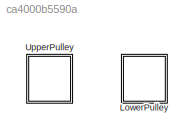
MODEL slx_ca4000b5590a
KIND library
CONFIG AbsTol = auto
CONFIG EnableMultiTasking = off
CONFIG FixedStep = auto
CONFIG MaxStep = auto
CONFIG MinStep = auto
CONFIG RelTol = 1e-3
CONFIG SampleTimeConstraint = Unconstrained
CONFIG Solver = VariableStepAuto
CONFIG SolverName = VariableStepAuto
CONFIG StartTime = 0.0
CONFIG StopTime = 10.0
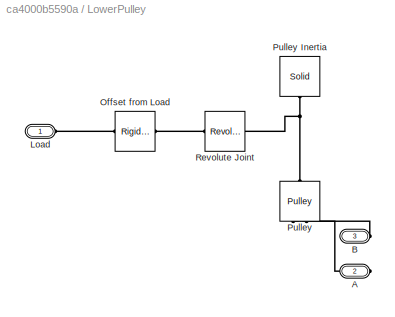
BLOCK [SubSystem] LowerPulley
  Ports = [0, 0, 0, 0, 0, 1, 2]
  RequestExecContextInheritance = off
BLOCK [PMIOPort] LowerPulley/A
  Port = 2
  Side = Right
BLOCK [PMIOPort] LowerPulley/B
  Port = 3
  Side = Right
BLOCK [PMIOPort] LowerPulley/Load
  Side = Left
BLOCK [Reference] LowerPulley/Offset from Load  REF=sm_lib/Frames and
Transforms/Rigid
Transform
  Ports = [0, 0, 0, 0, 0, 1, 1]
  SourceBlock = sm_lib/Frames and\nTransforms/Rigid\nTransform
  SourceProductBaseCode = MS
  SourceProductName = Simscape Multibody
  SourceType = Rigid\nTransform
BLOCK [Reference] LowerPulley/Pulley  REF=sm_lib/Belts and Cables/Pulley
  Ports = [0, 0, 0, 0, 0, 1, 2]
  SourceBlock = sm_lib/Belts and Cables/Pulley
  SourceProductBaseCode = MS
  SourceProductName = Simscape Multibody
  SourceType = Pulley
BLOCK [Reference] LowerPulley/Pulley Inertia  REF=sm_lib/Body Elements/Solid
  Ports = [0, 0, 0, 0, 0, 1]
  SourceBlock = sm_lib/Body Elements/Solid
  SourceProductBaseCode = MS
  SourceProductName = Simscape Multibody
  SourceType = Solid
BLOCK [Reference] LowerPulley/Revolute Joint  REF=sm_lib/Joints/Revolute Joint
  Ports = [0, 0, 0, 0, 0, 1, 1]
  SourceBlock = sm_lib/Joints/Revolute Joint
  SourceProductBaseCode = MS
  SourceProductName = Simscape Multibody
  SourceType = Revolute Joint
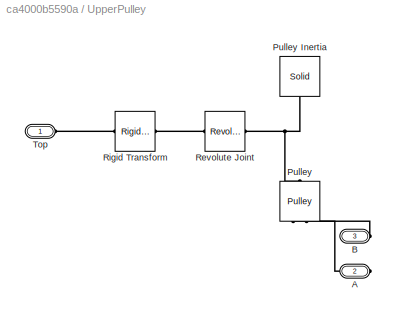
BLOCK [SubSystem] UpperPulley
  Ports = [0, 0, 0, 0, 0, 1, 2]
  RequestExecContextInheritance = off
BLOCK [PMIOPort] UpperPulley/A
  Port = 2
  Side = Right
BLOCK [PMIOPort] UpperPulley/B
  Port = 3
  Side = Right
BLOCK [Reference] UpperPulley/Pulley  REF=sm_lib/Belts and Cables/Pulley
  Ports = [0, 0, 0, 0, 0, 1, 2]
  SourceBlock = sm_lib/Belts and Cables/Pulley
  SourceProductBaseCode = MS
  SourceProductName = Simscape Multibody
  SourceType = Pulley
BLOCK [Reference] UpperPulley/Pulley Inertia  REF=sm_lib/Body Elements/Solid
  Ports = [0, 0, 0, 0, 0, 1]
  SourceBlock = sm_lib/Body Elements/Solid
  SourceProductBaseCode = MS
  SourceProductName = Simscape Multibody
  SourceType = Solid
BLOCK [Reference] UpperPulley/Revolute Joint  REF=sm_lib/Joints/Revolute Joint
  Ports = [0, 0, 0, 0, 0, 1, 1]
  SourceBlock = sm_lib/Joints/Revolute Joint
  SourceProductBaseCode = MS
  SourceProductName = Simscape Multibody
  SourceType = Revolute Joint
BLOCK [Reference] UpperPulley/Rigid Transform  REF=sm_lib/Frames and
Transforms/Rigid
Transform
  Ports = [0, 0, 0, 0, 0, 1, 1]
  SourceBlock = sm_lib/Frames and\nTransforms/Rigid\nTransform
  SourceProductBaseCode = MS
  SourceProductName = Simscape Multibody
  SourceType = Rigid\nTransform
BLOCK [PMIOPort] UpperPulley/Top
  Side = Left
PLINE LowerPulley/A:RConn1 -- LowerPulley/Pulley:RConn1
PLINE LowerPulley/B:RConn1 -- LowerPulley/Pulley:RConn2
PLINE LowerPulley/Load:RConn1 -- LowerPulley/Offset from Load:LConn1
PLINE LowerPulley/Offset from Load:RConn1 -- LowerPulley/Revolute Joint:LConn1
PNET net1: LowerPulley/Pulley Inertia:LConn1 -- LowerPulley/Pulley:LConn1 -- LowerPulley/Revolute Joint:RConn1
PLINE UpperPulley/A:RConn1 -- UpperPulley/Pulley:RConn1
PLINE UpperPulley/B:RConn1 -- UpperPulley/Pulley:RConn2
PNET net2: UpperPulley/Pulley Inertia:LConn1 -- UpperPulley/Pulley:LConn1 -- UpperPulley/Revolute Joint:RConn1
PLINE UpperPulley/Revolute Joint:LConn1 -- UpperPulley/Rigid Transform:RConn1
PLINE UpperPulley/Rigid Transform:LConn1 -- UpperPulley/Top:RConn1
note: PNET lines group multi-terminal physical nets as a canonical sorted terminal list (undirected conserving connections); 2-terminal nets keep the pairwise PLINE form
